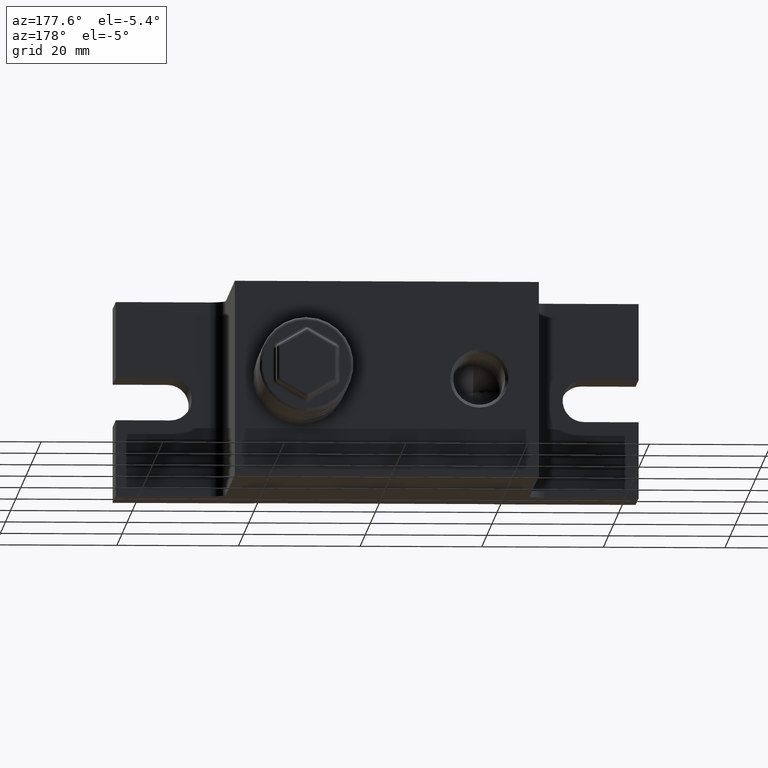
[diagram: clean part render]
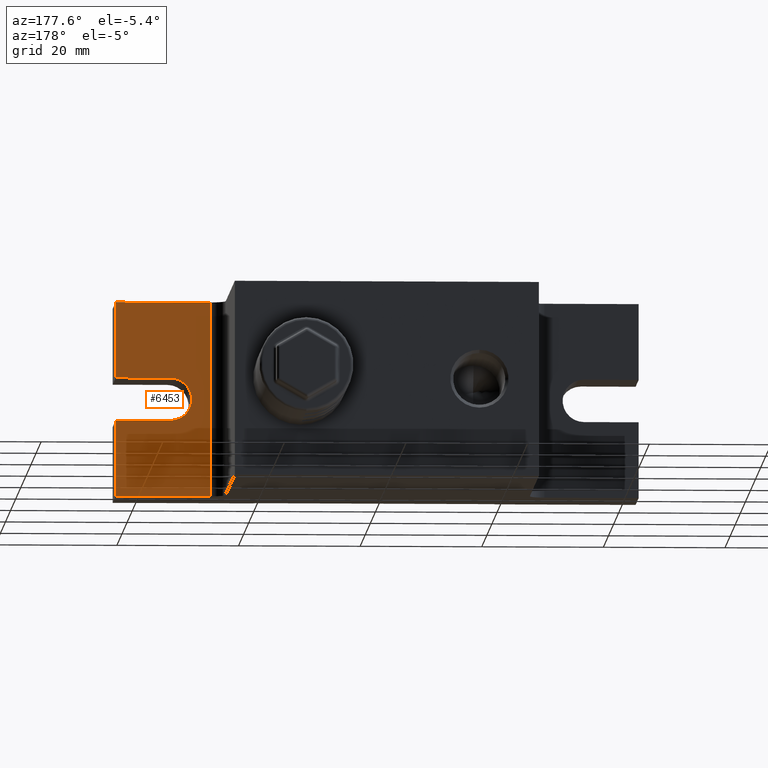
[diagram: same view with one face highlighted and labeled with its STEP entity id]
A machine part, auxiliary view. The second image highlights one B-rep face of the part: STEP entity #6453.
In plain terms, the highlighted planar face has unit normal (0, -1, -0).
Its self-contained STEP definition (entity closure, byte-faithful):
#115 = VERTEX_POINT ( 'NONE', #5868 ) ;
#162 = VECTOR ( 'NONE', #8375, 1000.000000000000000 ) ;
#230 = CARTESIAN_POINT ( 'NONE',  ( 43.00000000000000700, -13.00000000000000500, -16.00000000000000000 ) ) ;
#486 = VECTOR ( 'NONE', #5020, 1000.000000000000000 ) ;
#748 = DIRECTION ( 'NONE',  ( 1.000000000000000000, -0.0000000000000000000, -4.818676322157808100E-017 ) ) ;
#1177 = EDGE_CURVE ( 'NONE', #6017, #115, #8292, .T. ) ;
#1382 = ORIENTED_EDGE ( 'NONE', *, *, #7781, .F. ) ;
#1606 = CARTESIAN_POINT ( 'NONE',  ( 43.00000000000000700, -13.00000000000000500, -16.00000000000000000 ) ) ;
#1728 = EDGE_LOOP ( 'NONE', ( #8537, #1382, #3558, #9380, #3763, #9563, #2962, #2436 ) ) ;
#1752 = VECTOR ( 'NONE', #748, 1000.000000000000000 ) ;
#1851 = DIRECTION ( 'NONE',  ( -1.000000000000000000, 0.0000000000000000000, 5.300543954373588800E-016 ) ) ;
#1871 = VECTOR ( 'NONE', #5019, 1000.000000000000000 ) ;
#2009 = DIRECTION ( 'NONE',  ( 0.0000000000000000000, 1.000000000000000000, 0.0000000000000000000 ) ) ;
#2070 = LINE ( 'NONE', #4787, #3904 ) ;
#2281 = VERTEX_POINT ( 'NONE', #2329 ) ;
#2329 = CARTESIAN_POINT ( 'NONE',  ( 43.00000000000000700, -13.00000000000000500, -3.499999999999996000 ) ) ;
#2436 = ORIENTED_EDGE ( 'NONE', *, *, #9425, .T. ) ;
#2464 = LINE ( 'NONE', #8808, #486 ) ;
#2551 = LINE ( 'NONE', #6614, #1752 ) ;
#2728 = VERTEX_POINT ( 'NONE', #6450 ) ;
#2962 = ORIENTED_EDGE ( 'NONE', *, *, #5974, .T. ) ;
#3100 = CARTESIAN_POINT ( 'NONE',  ( 43.00000000000000700, -13.00000000000000500, -16.00000000000000000 ) ) ;
#3152 = CARTESIAN_POINT ( 'NONE',  ( 42.99999999999998600, -13.00000000000000500, 3.500000000000000000 ) ) ;
#3203 = EDGE_CURVE ( 'NONE', #6392, #2728, #2464, .T. ) ;
#3415 = CARTESIAN_POINT ( 'NONE',  ( 34.00000000000000000, -13.00000000000000500, -2.755364296100341300E-015 ) ) ;
#3501 = LINE ( 'NONE', #230, #162 ) ;
#3558 = ORIENTED_EDGE ( 'NONE', *, *, #1177, .F. ) ;
#3763 = ORIENTED_EDGE ( 'NONE', *, *, #7954, .F. ) ;
#3785 = DIRECTION ( 'NONE',  ( -0.0000000000000000000, -0.0000000000000000000, 1.000000000000000000 ) ) ;
#3859 = FACE_OUTER_BOUND ( 'NONE', #1728, .T. ) ;
#3874 = PLANE ( 'NONE',  #4144 ) ;
#3904 = VECTOR ( 'NONE', #1851, 1000.000000000000000 ) ;
#4144 = AXIS2_PLACEMENT_3D ( 'NONE', #1606, #4599, #6116 ) ;
#4189 = DIRECTION ( 'NONE',  ( 0.0000000000000000000, 0.0000000000000000000, 1.000000000000000000 ) ) ;
#4391 = VERTEX_POINT ( 'NONE', #6137 ) ;
#4455 = AXIS2_PLACEMENT_3D ( 'NONE', #3415, #2009, #4189 ) ;
#4599 = DIRECTION ( 'NONE',  ( 0.0000000000000000000, -1.000000000000000000, -0.0000000000000000000 ) ) ;
#4733 = VERTEX_POINT ( 'NONE', #3100 ) ;
#4787 = CARTESIAN_POINT ( 'NONE',  ( 42.99999999999998600, -13.00000000000000500, -3.500000000000000000 ) ) ;
#5019 = DIRECTION ( 'NONE',  ( 1.000000000000000000, -0.0000000000000000000, -0.0000000000000000000 ) ) ;
#5020 = DIRECTION ( 'NONE',  ( -0.0000000000000000000, -0.0000000000000000000, 1.000000000000000000 ) ) ;
#5081 = VERTEX_POINT ( 'NONE', #9633 ) ;
#5101 = LINE ( 'NONE', #6028, #5225 ) ;
#5225 = VECTOR ( 'NONE', #3785, 1000.000000000000000 ) ;
#5546 = LINE ( 'NONE', #7149, #9334 ) ;
#5571 = DIRECTION ( 'NONE',  ( 0.0000000000000000000, 0.0000000000000000000, 1.000000000000000000 ) ) ;
#5726 = EDGE_CURVE ( 'NONE', #2281, #6017, #2070, .T. ) ;
#5825 = LINE ( 'NONE', #8836, #1871 ) ;
#5868 = CARTESIAN_POINT ( 'NONE',  ( 34.00000000000000000, -13.00000000000000500, 3.499999999999995100 ) ) ;
#5974 = EDGE_CURVE ( 'NONE', #5081, #4391, #5546, .T. ) ;
#6017 = VERTEX_POINT ( 'NONE', #7876 ) ;
#6028 = CARTESIAN_POINT ( 'NONE',  ( 43.00000000000000700, -13.00000000000000500, -16.00000000000000000 ) ) ;
#6116 = DIRECTION ( 'NONE',  ( 0.0000000000000000000, 0.0000000000000000000, -1.000000000000000000 ) ) ;
#6137 = CARTESIAN_POINT ( 'NONE',  ( 27.50000000000001400, -13.00000000000000500, 16.00000000000000000 ) ) ;
#6392 = VERTEX_POINT ( 'NONE', #3152 ) ;
#6450 = CARTESIAN_POINT ( 'NONE',  ( 43.00000000000000700, -13.00000000000000500, 16.00000000000000000 ) ) ;
#6453 = ADVANCED_FACE ( 'NONE', ( #3859 ), #3874, .F. ) ;
#6614 = CARTESIAN_POINT ( 'NONE',  ( 42.99999999999998600, -13.00000000000000500, 3.500000000000000000 ) ) ;
#7005 = EDGE_CURVE ( 'NONE', #5081, #4733, #3501, .T. ) ;
#7149 = CARTESIAN_POINT ( 'NONE',  ( 27.50000000000001400, -13.00000000000000500, 16.00000000000000000 ) ) ;
#7781 = EDGE_CURVE ( 'NONE', #115, #6392, #2551, .T. ) ;
#7876 = CARTESIAN_POINT ( 'NONE',  ( 34.00000000000000000, -13.00000000000000500, -3.499999999999995100 ) ) ;
#7954 = EDGE_CURVE ( 'NONE', #4733, #2281, #5101, .T. ) ;
#8292 = CIRCLE ( 'NONE', #4455, 3.499999999999997800 ) ;
#8375 = DIRECTION ( 'NONE',  ( 1.000000000000000000, -0.0000000000000000000, -0.0000000000000000000 ) ) ;
#8537 = ORIENTED_EDGE ( 'NONE', *, *, #3203, .F. ) ;
#8808 = CARTESIAN_POINT ( 'NONE',  ( 43.00000000000000700, -13.00000000000000500, -16.00000000000000000 ) ) ;
#8836 = CARTESIAN_POINT ( 'NONE',  ( 43.00000000000000700, -13.00000000000000500, 16.00000000000000000 ) ) ;
#9334 = VECTOR ( 'NONE', #5571, 1000.000000000000000 ) ;
#9380 = ORIENTED_EDGE ( 'NONE', *, *, #5726, .F. ) ;
#9425 = EDGE_CURVE ( 'NONE', #4391, #2728, #5825, .T. ) ;
#9563 = ORIENTED_EDGE ( 'NONE', *, *, #7005, .F. ) ;
#9633 = CARTESIAN_POINT ( 'NONE',  ( 27.50000000000001400, -13.00000000000000500, -16.00000000000000000 ) ) ;